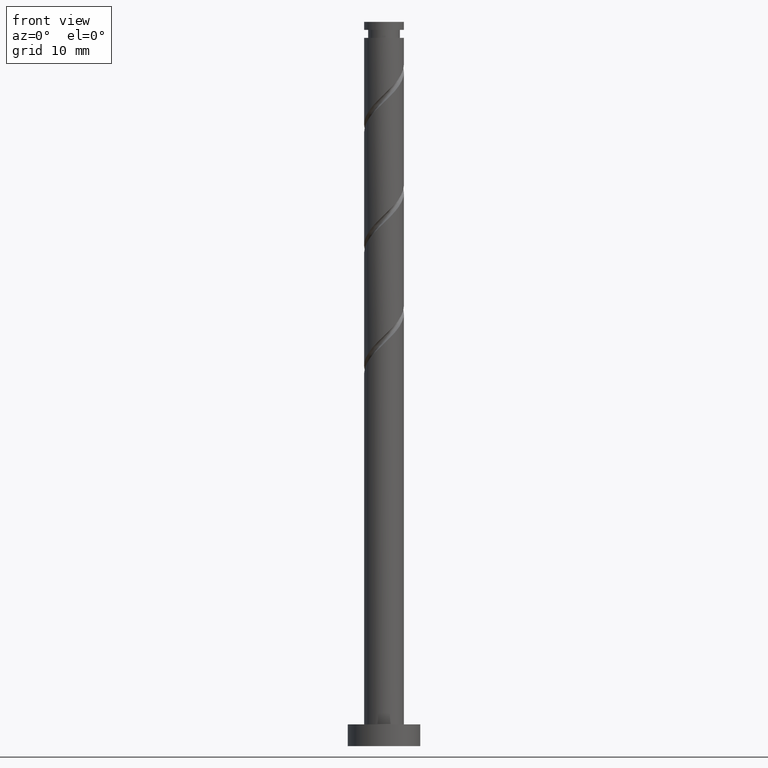
[diagram: clean part render]
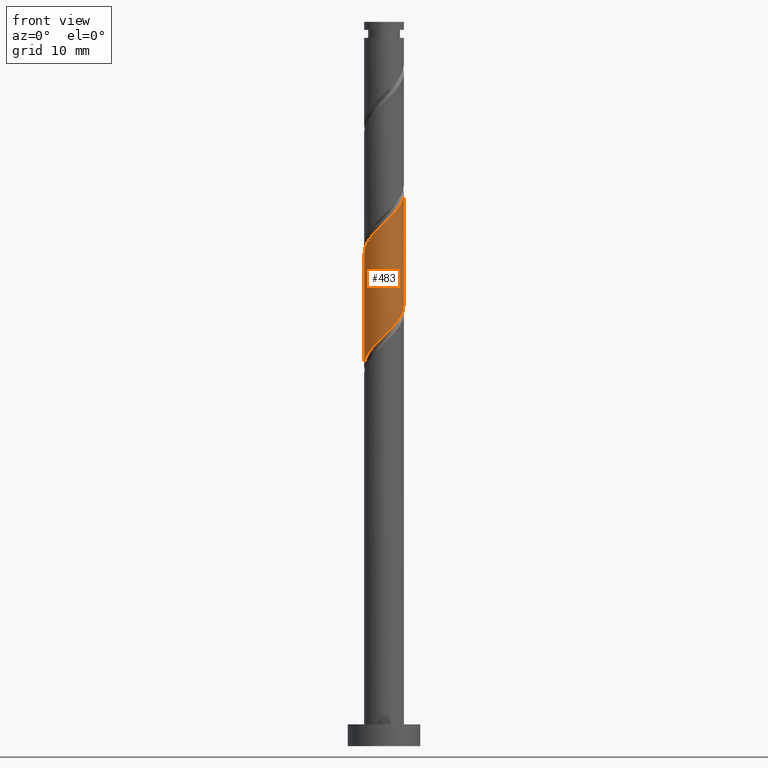
[diagram: same view with one face highlighted and labeled with its STEP entity id]
A machine part, front view. The second image highlights one B-rep face of the part: STEP entity #483.
In plain terms, the highlighted cylindrical surface (edge-blend (fillet) strip) has radius 2.75 mm, axis along (-0, -0, -1).
Its self-contained STEP definition (entity closure, byte-faithful):
#24 = CARTESIAN_POINT ( 'NONE',  ( 0.5472430904086408310, -2.695000000000004281, 72.78680763537381893 ) ) ;
#39 = CARTESIAN_POINT ( 'NONE',  ( -1.849524856773550496, -2.092100627450280914, 54.73125207981824047 ) ) ;
#40 = VERTEX_POINT ( 'NONE', #145 ) ;
#64 = CARTESIAN_POINT ( 'NONE',  ( 2.736574719032083269, -0.5556851971715309757, 60.28680763537379050 ) ) ;
#106 = CARTESIAN_POINT ( 'NONE',  ( -2.750000000000003997, -0.03547960441305458151, 68.12330345431742273 ) ) ;
#111 = CARTESIAN_POINT ( 'NONE',  ( 0.07204187739932632617, -2.791493721845330178, 72.32384467241084280 ) ) ;
#116 = CARTESIAN_POINT ( 'NONE',  ( 2.750000000000003553, -2.285661881674731789E-15, 76.42261941371836542 ) ) ;
#118 = CARTESIAN_POINT ( 'NONE',  ( -0.8870498622585327730, -2.647785824621815554, 71.39791874648491898 ) ) ;
#133 = ORIENTED_EDGE ( 'NONE', *, *, #169, .F. ) ;
#145 = CARTESIAN_POINT ( 'NONE',  ( 2.750000000000000000, 5.751502120554104667E-16, 60.81766252369589409 ) ) ;
#169 = EDGE_CURVE ( 'NONE', #315, #40, #641, .T. ) ;
#245 = AXIS2_PLACEMENT_3D ( 'NONE', #382, #1077, #963 ) ;
#249 = CARTESIAN_POINT ( 'NONE',  ( -2.060316917994745811, -1.821426418339388897, 70.00902985759604746 ) ) ;
#289 = CARTESIAN_POINT ( 'NONE',  ( 2.060316917994740926, -1.821426418339388009, 58.89791874648493319 ) ) ;
#306 = CARTESIAN_POINT ( 'NONE',  ( -2.750000000000003997, 2.296866106584901725E-15, 68.08928608038506525 ) ) ;
#315 = VERTEX_POINT ( 'NONE', #116 ) ;
#342 = CARTESIAN_POINT ( 'NONE',  ( -1.739150297066327511, -2.184715879791973236, 70.47199282055899516 ) ) ;
#366 = CARTESIAN_POINT ( 'NONE',  ( -2.750000000000000000, 0.000000000000000000, 100.0000000000000000 ) ) ;
#382 = CARTESIAN_POINT ( 'NONE',  ( 0.000000000000000000, 0.000000000000000000, 100.0000000000000000 ) ) ;
#394 =( BOUNDED_CURVE ( )  B_SPLINE_CURVE ( 2, ( #306, #106, #783, #1020, #1050, #927, #249, #342, #1485, #118, #674, #111, #24, #1127, #482, #1148, #913, #1360, #1477, #920, #1138 ),
 .UNSPECIFIED., .F., .T. ) 
 B_SPLINE_CURVE_WITH_KNOTS ( ( 3, 2, 2, 2, 2, 2, 2, 2, 2, 2, 3 ),
 ( 0.3045248053855290071, 0.3055555555555555802, 0.3194444444444444198, 0.3333333333333333703, 0.3472222222222222099, 0.3611111111111111605, 0.3750000000000000000, 0.3888888888888888395, 0.4027777777777777901, 0.4166666666666666297, 0.4295248053855290071 ),
 .UNSPECIFIED. ) 
 CURVE ( )  GEOMETRIC_REPRESENTATION_ITEM ( )  RATIONAL_B_SPLINE_CURVE ( ( 0.9071930855141276950, 0.9080659294509754176, 0.9090909090909156109, 0.8952797754656500739, 0.9090909090909156109, 0.8952797754656500739, 0.9090909090909156109, 0.8952797754656500739, 0.9090909090909156109, 0.8952797754656500739, 0.9090909090909156109, 0.8952797754656500739, 0.9090909090909156109, 0.8952797754656500739, 0.9090909090909156109, 0.8952797754656500739, 0.9090909090909156109, 0.8952797754656500739, 0.9090909090909156109, 0.8963047551055902673, 0.9071930855141276950 ) ) 
 REPRESENTATION_ITEM ( '' )  );
#452 = ORIENTED_EDGE ( 'NONE', *, *, #1300, .F. ) ;
#482 = CARTESIAN_POINT ( 'NONE',  ( 1.435984580095754470, -2.345303452802482091, 73.71273356129971432 ) ) ;
#483 = ADVANCED_FACE ( 'NONE', ( #506 ), #1186, .T. ) ;
#485 = LINE ( 'NONE', #366, #1176 ) ;
#499 = CARTESIAN_POINT ( 'NONE',  ( 2.749999999999999556, -0.03547960441306192980, 60.78364514976354371 ) ) ;
#506 = FACE_OUTER_BOUND ( 'NONE', #1324, .T. ) ;
#509 = CARTESIAN_POINT ( 'NONE',  ( -2.750000000000000000, -1.561122004150399810E-15, 52.48432919036256550 ) ) ;
#523 = CARTESIAN_POINT ( 'NONE',  ( -0.07204187739932858825, -2.791493721845325293, 56.58310393167008101 ) ) ;
#538 = CARTESIAN_POINT ( 'NONE',  ( 2.750000000000000000, 3.367778697655220519E-16, 100.0000000000000000 ) ) ;
#600 = VECTOR ( 'NONE', #1395, 1000.000000000000000 ) ;
#612 = CARTESIAN_POINT ( 'NONE',  ( 2.750000000000000000, 5.751502120554104667E-16, 60.81766252369589409 ) ) ;
#614 = CARTESIAN_POINT ( 'NONE',  ( -2.750000000000003997, 2.296866106584901725E-15, 68.08928608038506525 ) ) ;
#641 = LINE ( 'NONE', #538, #600 ) ;
#674 = CARTESIAN_POINT ( 'NONE',  ( -0.4075039924296033900, -2.719639773233572644, 71.86088170944789510 ) ) ;
#732 = CARTESIAN_POINT ( 'NONE',  ( 1.313100079662427699, -2.416250852206890176, 57.97199282055898806 ) ) ;
#733 =( BOUNDED_CURVE ( )  B_SPLINE_CURVE ( 2, ( #612, #499, #826, #64, #944, #1421, #289, #1195, #732, #847, #1439, #523, #1313, #978, #854, #39, #1406, #1080, #741, #1202, #509 ),
 .UNSPECIFIED., .F., .T. ) 
 B_SPLINE_CURVE_WITH_KNOTS ( ( 3, 2, 2, 2, 2, 2, 2, 2, 2, 2, 3 ),
 ( 0.8045248053855291737, 0.8055555555555555802, 0.8194444444444444198, 0.8333333333333333703, 0.8472222222222222099, 0.8611111111111111605, 0.8750000000000000000, 0.8888888888888888395, 0.9027777777777777901, 0.9166666666666666297, 0.9295248053855290626 ),
 .UNSPECIFIED. ) 
 CURVE ( )  GEOMETRIC_REPRESENTATION_ITEM ( )  RATIONAL_B_SPLINE_CURVE ( ( 0.9071930855141214778, 0.9080659294509690893, 0.9090909090909090606, 0.8952797754656436346, 0.9090909090909090606, 0.8952797754656436346, 0.9090909090909090606, 0.8952797754656436346, 0.9090909090909090606, 0.8952797754656436346, 0.9090909090909090606, 0.8952797754656436346, 0.9090909090909090606, 0.8952797754656436346, 0.9090909090909090606, 0.8952797754656436346, 0.9090909090909090606, 0.8952797754656436346, 0.9090909090909090606, 0.8963047551055837170, 0.9071930855141213668 ) ) 
 REPRESENTATION_ITEM ( '' )  );
#741 = CARTESIAN_POINT ( 'NONE',  ( -2.607560008403383200, -0.8735735816606121640, 53.34236319092936895 ) ) ;
#779 = EDGE_CURVE ( 'NONE', #1101, #1016, #485, .T. ) ;
#783 = CARTESIAN_POINT ( 'NONE',  ( -2.749084659758184834, -0.07094739940441233128, 68.15717800574419982 ) ) ;
#826 = CARTESIAN_POINT ( 'NONE',  ( 2.749084659758180393, -0.07094739940441381620, 60.74977059833678084 ) ) ;
#847 = CARTESIAN_POINT ( 'NONE',  ( 0.8870498622585304416, -2.647785824621811557, 57.50902985759601904 ) ) ;
#854 = CARTESIAN_POINT ( 'NONE',  ( -1.435984580095752916, -2.345303452802476762, 55.19421504278122370 ) ) ;
#913 = CARTESIAN_POINT ( 'NONE',  ( 2.151525136548022132, -1.712728696204404377, 74.63865948722566657 ) ) ;
#920 = CARTESIAN_POINT ( 'NONE',  ( 2.750000000000003553, -0.4483995225062607504, 75.99269990135276487 ) ) ;
#927 = CARTESIAN_POINT ( 'NONE',  ( -2.381483538923164556, -1.458136956886806113, 69.54606689463308555 ) ) ;
#944 = CARTESIAN_POINT ( 'NONE',  ( 2.559029128977621248, -1.006911077029167156, 59.82384467241085702 ) ) ;
#963 = DIRECTION ( 'NONE',  ( -1.000000000000000000, 0.000000000000000000, 0.000000000000000000 ) ) ;
#978 = CARTESIAN_POINT ( 'NONE',  ( -1.022444303417954892, -2.598506278154674831, 55.65717800574418561 ) ) ;
#1011 = ORIENTED_EDGE ( 'NONE', *, *, #1452, .F. ) ;
#1016 = VERTEX_POINT ( 'NONE', #1060 ) ;
#1020 = CARTESIAN_POINT ( 'NONE',  ( -2.736574719032087266, -0.5556851971715307537, 68.62014096870713331 ) ) ;
#1050 = CARTESIAN_POINT ( 'NONE',  ( -2.559029128977625245, -1.006911077029168489, 69.08310393167013785 ) ) ;
#1060 = CARTESIAN_POINT ( 'NONE',  ( -2.750000000000000000, -1.561122004150399810E-15, 52.48432919036256550 ) ) ;
#1077 = DIRECTION ( 'NONE',  ( -0.000000000000000000, -0.000000000000000000, -1.000000000000000000 ) ) ;
#1080 = CARTESIAN_POINT ( 'NONE',  ( -2.453525416322486219, -1.333356764958521179, 53.80532615389230955 ) ) ;
#1100 = ORIENTED_EDGE ( 'NONE', *, *, #779, .T. ) ;
#1101 = VERTEX_POINT ( 'NONE', #614 ) ;
#1127 = CARTESIAN_POINT ( 'NONE',  ( 1.022444303417954226, -2.598506278154680160, 73.24977059833676662 ) ) ;
#1138 = CARTESIAN_POINT ( 'NONE',  ( 2.750000000000003553, -2.285661881674731789E-15, 76.42261941371836542 ) ) ;
#1148 = CARTESIAN_POINT ( 'NONE',  ( 1.849524856773553161, -2.092100627450284911, 74.17569652426271887 ) ) ;
#1176 = VECTOR ( 'NONE', #1486, 1000.000000000000000 ) ;
#1186 = CYLINDRICAL_SURFACE ( 'NONE', #245, 2.750000000000000000 ) ;
#1195 = CARTESIAN_POINT ( 'NONE',  ( 1.739150297066323514, -2.184715879791970572, 58.43495578352194286 ) ) ;
#1202 = CARTESIAN_POINT ( 'NONE',  ( -2.749999999999999112, -0.4483995225062557544, 52.91424870272817316 ) ) ;
#1300 = EDGE_CURVE ( 'NONE', #1101, #315, #394, .T. ) ;
#1313 = CARTESIAN_POINT ( 'NONE',  ( -0.5472430904086409420, -2.695000000000000728, 56.12014096870714042 ) ) ;
#1324 = EDGE_LOOP ( 'NONE', ( #133, #452, #1100, #1011 ) ) ;
#1360 = CARTESIAN_POINT ( 'NONE',  ( 2.453525416322490660, -1.333356764958524288, 75.10162245018864269 ) ) ;
#1395 = DIRECTION ( 'NONE',  ( -0.000000000000000000, -0.000000000000000000, -1.000000000000000000 ) ) ;
#1406 = CARTESIAN_POINT ( 'NONE',  ( -2.151525136548019468, -1.712728696204400602, 54.26828911685527856 ) ) ;
#1421 = CARTESIAN_POINT ( 'NONE',  ( 2.381483538923157894, -1.458136956886805891, 59.36088170944788089 ) ) ;
#1439 = CARTESIAN_POINT ( 'NONE',  ( 0.4075039924296015026, -2.719639773233567759, 57.04606689463307134 ) ) ;
#1452 = EDGE_CURVE ( 'NONE', #40, #1016, #733, .T. ) ;
#1477 = CARTESIAN_POINT ( 'NONE',  ( 2.607560008403385865, -0.8735735816606161608, 75.56458541315160460 ) ) ;
#1485 = CARTESIAN_POINT ( 'NONE',  ( -1.313100079662430586, -2.416250852206894617, 70.93495578352197128 ) ) ;
#1486 = DIRECTION ( 'NONE',  ( -0.000000000000000000, -0.000000000000000000, -1.000000000000000000 ) ) ;